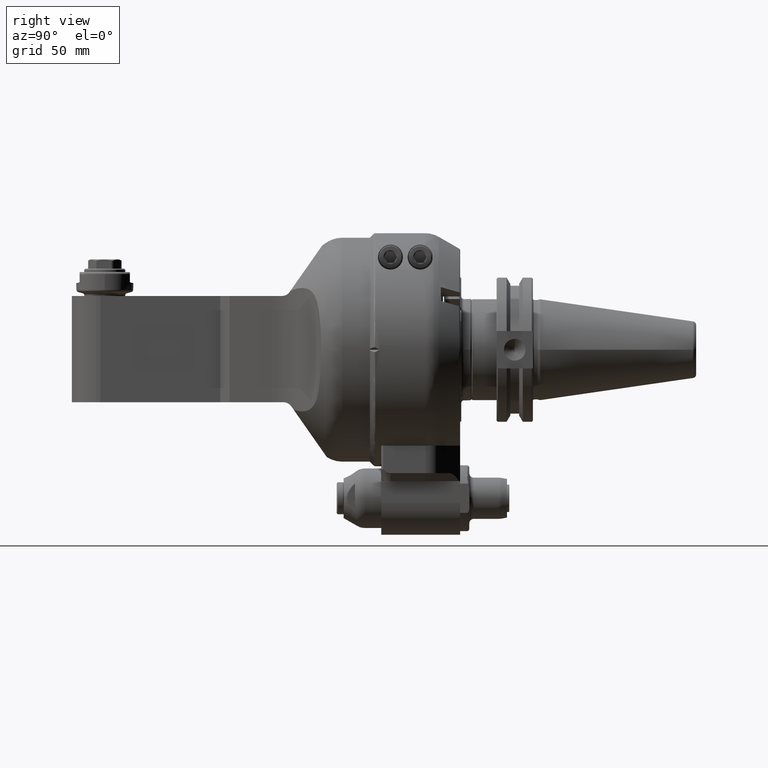
[diagram: clean part render]
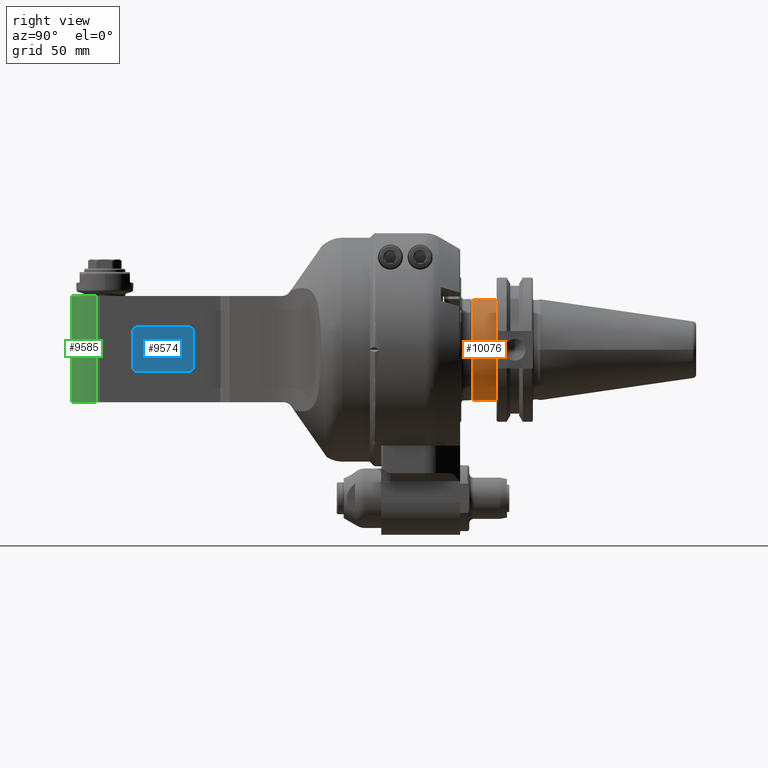
[diagram: same view with three faces highlighted in distinct colors, each labeled with its STEP entity id]
A machine part, right view with three faces highlighted in distinct colors.
Their STEP definitions:

[orange] entity #10076 — the highlighted cylindrical surface (bore or boss wall) has radius 22.225 mm, axis along (0, -1, 0).
#636=CYLINDRICAL_SURFACE('',#11234,22.225);
#1141=CIRCLE('',#11232,22.225);
#1142=CIRCLE('',#11233,22.225);
#1143=CIRCLE('',#11235,22.225);
#1744=FACE_OUTER_BOUND('',#2434,.T.);
#2434=EDGE_LOOP('',(#8846,#8847,#8848,#8849,#8850));
#3142=LINE('',#20107,#3842);
#3842=VECTOR('',#14033,22.225);
#4763=VERTEX_POINT('',#20100);
#4764=VERTEX_POINT('',#20101);
#4765=VERTEX_POINT('',#20106);
#6148=EDGE_CURVE('',#4763,#4764,#1141,.T.);
#6150=EDGE_CURVE('',#4764,#4763,#1142,.T.);
#6151=EDGE_CURVE('',#4763,#4765,#3142,.T.);
#6152=EDGE_CURVE('',#4765,#4765,#1143,.T.);
#8846=ORIENTED_EDGE('',*,*,#6148,.F.);
#8847=ORIENTED_EDGE('',*,*,#6151,.T.);
#8848=ORIENTED_EDGE('',*,*,#6152,.F.);
#8849=ORIENTED_EDGE('',*,*,#6151,.F.);
#8850=ORIENTED_EDGE('',*,*,#6150,.F.);
#10076=ADVANCED_FACE('',(#1744),#636,.T.);
#11232=AXIS2_PLACEMENT_3D('',#20102,#14026,#14027);
#11233=AXIS2_PLACEMENT_3D('',#20104,#14029,#14030);
#11234=AXIS2_PLACEMENT_3D('',#20105,#14031,#14032);
#11235=AXIS2_PLACEMENT_3D('',#20108,#14034,#14035);
#14026=DIRECTION('center_axis',(0.,-1.,0.));
#14027=DIRECTION('ref_axis',(-1.,0.,0.));
#14029=DIRECTION('center_axis',(0.,-1.,0.));
#14030=DIRECTION('ref_axis',(-1.,0.,0.));
#14031=DIRECTION('center_axis',(0.,-1.,0.));
#14032=DIRECTION('ref_axis',(1.,0.,0.));
#14033=DIRECTION('',(0.,1.,0.));
#14034=DIRECTION('center_axis',(0.,1.,0.));
#14035=DIRECTION('ref_axis',(1.,0.,0.));
#20100=CARTESIAN_POINT('',(-22.225,45.,0.));
#20101=CARTESIAN_POINT('',(22.225,45.,-2.72177751110499E-15));
#20102=CARTESIAN_POINT('Origin',(0.,45.,0.));
#20104=CARTESIAN_POINT('Origin',(0.,45.,0.));
#20105=CARTESIAN_POINT('Origin',(0.,49.975,0.));
#20106=CARTESIAN_POINT('',(-22.225,55.45,-2.72177751110499E-15));
#20107=CARTESIAN_POINT('',(-22.225,49.975,-2.72177751110499E-15));
#20108=CARTESIAN_POINT('Origin',(0.,55.45,0.));

[blue] entity #9574 — the highlighted planar face has unit normal (1, 0, -0).
#666=CIRCLE('',#10234,2.);
#667=CIRCLE('',#10235,2.);
#668=CIRCLE('',#10236,2.);
#669=CIRCLE('',#10237,2.);
#1242=FACE_OUTER_BOUND('',#1844,.T.);
#1844=EDGE_LOOP('',(#6385,#6386,#6387,#6388,#6389,#6390,#6391,#6392));
#2552=LINE('',#14544,#3252);
#2556=LINE('',#14556,#3256);
#2557=LINE('',#14560,#3257);
#2558=LINE('',#14563,#3258);
#3252=VECTOR('',#11439,15.5);
#3256=VECTOR('',#11449,22.5);
#3257=VECTOR('',#11452,15.5);
#3258=VECTOR('',#11455,22.5);
#3952=VERTEX_POINT('',#14542);
#3953=VERTEX_POINT('',#14543);
#3956=VERTEX_POINT('',#14551);
#3957=VERTEX_POINT('',#14553);
#3958=VERTEX_POINT('',#14555);
#3959=VERTEX_POINT('',#14557);
#3960=VERTEX_POINT('',#14559);
#3961=VERTEX_POINT('',#14561);
#4917=EDGE_CURVE('',#3952,#3953,#2552,.T.);
#4921=EDGE_CURVE('',#3952,#3956,#666,.T.);
#4922=EDGE_CURVE('',#3957,#3953,#667,.T.);
#4923=EDGE_CURVE('',#3957,#3958,#2556,.T.);
#4924=EDGE_CURVE('',#3959,#3958,#668,.T.);
#4925=EDGE_CURVE('',#3959,#3960,#2557,.T.);
#4926=EDGE_CURVE('',#3960,#3961,#669,.T.);
#4927=EDGE_CURVE('',#3961,#3956,#2558,.T.);
#6385=ORIENTED_EDGE('',*,*,#4921,.F.);
#6386=ORIENTED_EDGE('',*,*,#4917,.T.);
#6387=ORIENTED_EDGE('',*,*,#4922,.F.);
#6388=ORIENTED_EDGE('',*,*,#4923,.T.);
#6389=ORIENTED_EDGE('',*,*,#4924,.F.);
#6390=ORIENTED_EDGE('',*,*,#4925,.T.);
#6391=ORIENTED_EDGE('',*,*,#4926,.T.);
#6392=ORIENTED_EDGE('',*,*,#4927,.T.);
#9310=PLANE('',#10233);
#9574=ADVANCED_FACE('',(#1242),#9310,.T.);
#10233=AXIS2_PLACEMENT_3D('',#14550,#11443,#11444);
#10234=AXIS2_PLACEMENT_3D('',#14552,#11445,#11446);
#10235=AXIS2_PLACEMENT_3D('',#14554,#11447,#11448);
#10236=AXIS2_PLACEMENT_3D('',#14558,#11450,#11451);
#10237=AXIS2_PLACEMENT_3D('',#14562,#11453,#11454);
#11439=DIRECTION('',(0.,-1.,0.));
#11443=DIRECTION('center_axis',(0.,0.,1.));
#11444=DIRECTION('ref_axis',(1.,0.,0.));
#11445=DIRECTION('center_axis',(0.,0.,-1.));
#11446=DIRECTION('ref_axis',(-1.,0.,0.));
#11447=DIRECTION('center_axis',(0.,0.,-1.));
#11448=DIRECTION('ref_axis',(0.,-1.,0.));
#11449=DIRECTION('',(1.,0.,0.));
#11450=DIRECTION('center_axis',(0.,0.,-1.));
#11451=DIRECTION('ref_axis',(1.,0.,0.));
#11452=DIRECTION('',(0.,1.,0.));
#11453=DIRECTION('center_axis',(0.,0.,1.));
#11454=DIRECTION('ref_axis',(1.,0.,0.));
#11455=DIRECTION('',(-1.,0.,0.));
#14542=CARTESIAN_POINT('',(94.25,7.5,14.2));
#14543=CARTESIAN_POINT('',(94.25,-8.,14.2));
#14544=CARTESIAN_POINT('',(94.25,7.5,14.2));
#14550=CARTESIAN_POINT('Origin',(0.,0.,14.2));
#14551=CARTESIAN_POINT('',(96.25,9.5,14.2));
#14552=CARTESIAN_POINT('Origin',(96.25,7.5,14.2));
#14553=CARTESIAN_POINT('',(96.25,-10.,14.2));
#14554=CARTESIAN_POINT('Origin',(96.25,-8.,14.2));
#14555=CARTESIAN_POINT('',(118.75,-10.,14.2));
#14556=CARTESIAN_POINT('',(96.25,-10.,14.2));
#14557=CARTESIAN_POINT('',(120.75,-8.,14.2));
#14558=CARTESIAN_POINT('Origin',(118.75,-8.,14.2));
#14559=CARTESIAN_POINT('',(120.75,7.5,14.2));
#14560=CARTESIAN_POINT('',(120.75,-8.,14.2));
#14561=CARTESIAN_POINT('',(118.75,9.5,14.2));
#14562=CARTESIAN_POINT('Origin',(118.75,7.5,14.2));
#14563=CARTESIAN_POINT('',(118.75,9.5,14.2));

[green] entity #9585 — the highlighted cylindrical surface (edge-blend (fillet) strip) has radius 14.5 mm, axis along (-0, 0, -1).
#494=CYLINDRICAL_SURFACE('',#10261,14.5);
#675=CIRCLE('',#10246,14.5);
#680=CIRCLE('',#10258,14.5);
#1253=FACE_OUTER_BOUND('',#1857,.T.);
#1857=EDGE_LOOP('',(#6468,#6469,#6470,#6471));
#2592=LINE('',#14718,#3292);
#2593=LINE('',#14720,#3293);
#3292=VECTOR('',#11535,46.5);
#3293=VECTOR('',#11538,46.5);
#3977=VERTEX_POINT('',#14599);
#3978=VERTEX_POINT('',#14601);
#4001=VERTEX_POINT('',#14710);
#4002=VERTEX_POINT('',#14712);
#4946=EDGE_CURVE('',#3977,#3978,#675,.T.);
#4976=EDGE_CURVE('',#4001,#4002,#680,.T.);
#4979=EDGE_CURVE('',#3977,#4002,#2592,.T.);
#4980=EDGE_CURVE('',#4001,#3978,#2593,.T.);
#6468=ORIENTED_EDGE('',*,*,#4946,.F.);
#6469=ORIENTED_EDGE('',*,*,#4979,.T.);
#6470=ORIENTED_EDGE('',*,*,#4976,.F.);
#6471=ORIENTED_EDGE('',*,*,#4980,.T.);
#9585=ADVANCED_FACE('',(#1253),#494,.T.);
#10246=AXIS2_PLACEMENT_3D('',#14602,#11485,#11486);
#10258=AXIS2_PLACEMENT_3D('',#14713,#11528,#11529);
#10261=AXIS2_PLACEMENT_3D('',#14719,#11536,#11537);
#11485=DIRECTION('center_axis',(0.,1.,0.));
#11486=DIRECTION('ref_axis',(0.258819045102493,0.,0.965925826289076));
#11528=DIRECTION('center_axis',(0.,-1.,0.));
#11529=DIRECTION('ref_axis',(0.258819045102493,0.,-0.965925826289076));
#11535=DIRECTION('',(0.,-1.,0.));
#11536=DIRECTION('center_axis',(0.,1.,0.));
#11537=DIRECTION('ref_axis',(1.,0.,1.22464679914735E-16));
#11538=DIRECTION('',(0.,1.,0.));
#14599=CARTESIAN_POINT('',(136.752876154,23.,14.00592448119));
#14601=CARTESIAN_POINT('',(136.752876154,23.,-14.00592448119));
#14602=CARTESIAN_POINT('Origin',(133.,23.,0.));
#14710=CARTESIAN_POINT('',(136.752876154,-23.5,-14.00592448119));
#14712=CARTESIAN_POINT('',(136.752876154,-23.5,14.00592448119));
#14713=CARTESIAN_POINT('Origin',(133.,-23.5,0.));
#14718=CARTESIAN_POINT('',(136.752876154,23.,14.00592448119));
#14719=CARTESIAN_POINT('Origin',(133.,-66.95199937934,0.));
#14720=CARTESIAN_POINT('',(136.752876154,-23.5,-14.00592448119));